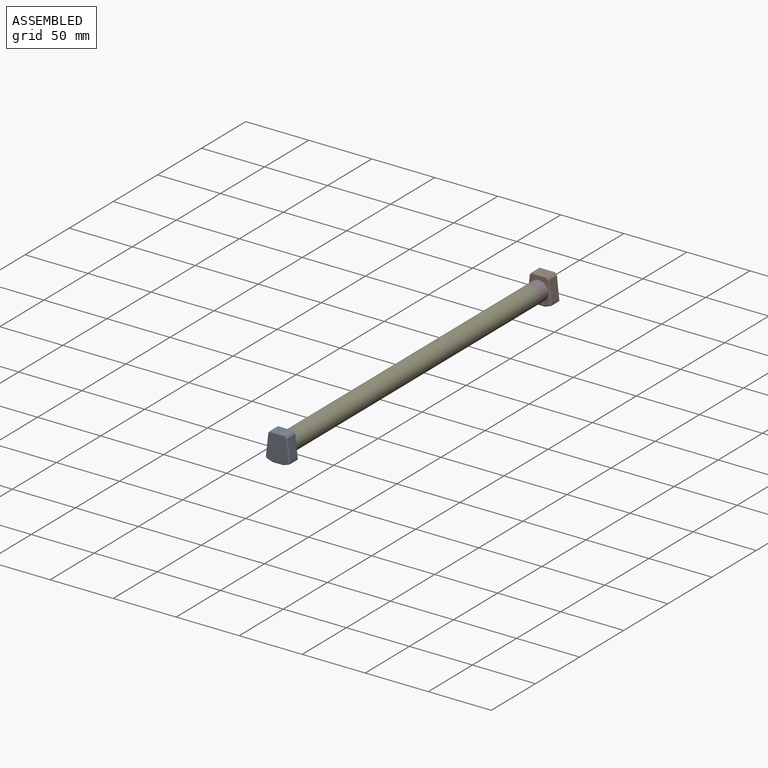
[diagram: assembled view]
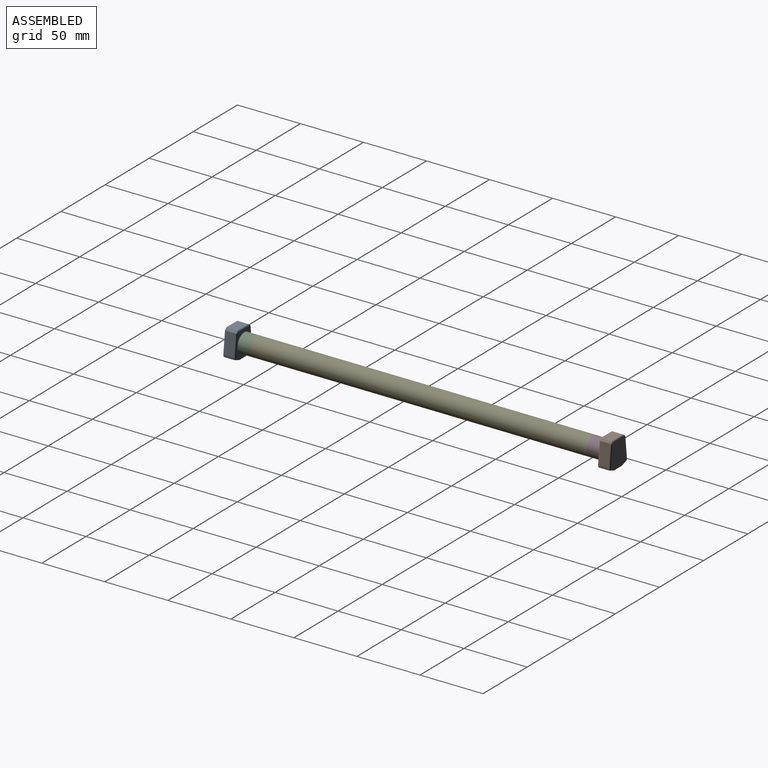
[diagram: assembled view, second angle]
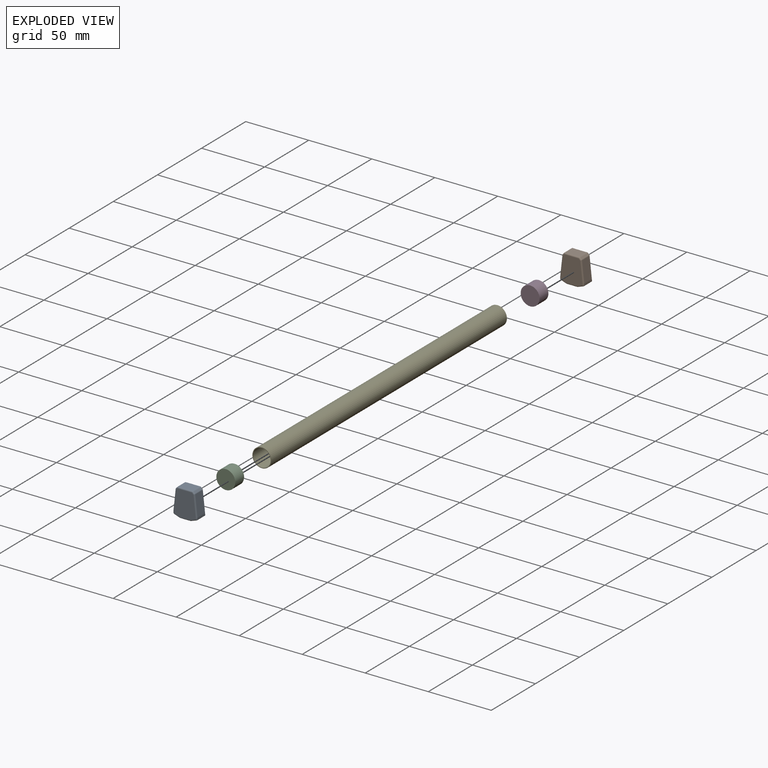
[diagram: exploded view]
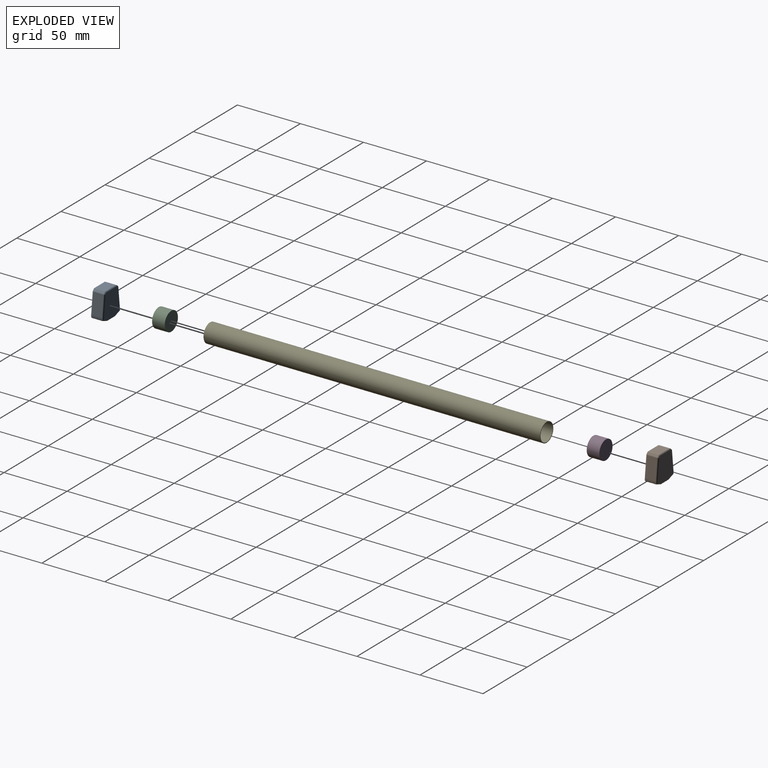
[diagram: exploded view, second angle]
ASSEMBLY  parts=5 mates=4
PART A: 48 faces, bbox 19.6x10x22 mm
  f0: plane 16.46x9mm, normal (-0.99,0,0.11), area 149mm2, adj f1,f9,f10,f40
  f1: plane 9x1.27mm, normal (-1,0,0), area 11.4mm2, adj f0,f10,f43,f45,f47
  f2: plane 8x4.47mm, normal (-0.33,0,-0.94), area 37.9mm2, adj f38,f44,f45,f47
  f3: plane 8.07x8mm, normal (0,0,-1), area 64.5mm2, adj f31,f37,f38,f39
  f4: plane 8x4.47mm, normal (0.33,0,-0.94), area 37.9mm2, adj f26,f30,f31,f32
  f5: plane 8.51x1.21mm, normal (1,0,0), area 10.2mm2, adj f20,f21,f26,f27
  f6: plane 16.08x8mm, normal (0.99,0,0.11), area 129.4mm2, adj f12,f15,f21,f27
  f7: plane 8x1.13mm, normal (0.74,0,0.68), area 12.3mm2, adj f15,f16,f18,f19
  f8: plane 11.34x8mm, normal (0,0,1), area 90.7mm2, adj f18,f23,f28,f29
  f9: plane 9.05x1.42mm, normal (-0.74,0,0.68), area 16.7mm2, adj f0,f10,f23,f28,f36
  f10: plane 20x18.13mm, normal (0,1,0), area 317.7mm2, adj f0,f1,f9,f16,f23,f27,f32,f39
  f11: plane 20x17mm, normal (0,-1,0), area 298.9mm2, adj f12,f19,f20,f29,f30,f36,f37,f40
  f12: cylinder r=1mm len=16.19mm, axis (-0.11,0,0.99), area 25.4mm2, adj f6,f11,f13,f14
  f13: sphere r=1mm, area 0.7mm2, adj f12,f15,f19
  f14: sphere r=1mm, area 0.1mm2, adj f12,f20,f21
  f15: cylinder r=1mm len=8mm, axis (0,-1,0), area 5mm2, adj f6,f7,f13,f22
  f16: cylinder r=1mm len=1.81mm, axis (0.68,0,-0.74), area 2.4mm2, adj f7,f10,f17,f22
  f17: sphere r=1mm, area 0.8mm2, adj f16,f18,f23
  f18: cylinder r=1mm len=8mm, axis (0,1,0), area 6.6mm2, adj f7,f8,f17,f24
  f19: cylinder r=1mm len=1.81mm, axis (-0.68,0,0.74), area 2.4mm2, adj f7,f11,f13,f24
  f20: cylinder r=1mm len=1.21mm, axis (0,0,1), area 1.9mm2, adj f5,f11,f14,f25
  f21: cylinder r=1mm len=8.11mm, axis (0,1,0), area 0.9mm2, adj f5,f6,f14,f27
  f22: sphere r=1mm, area 0.7mm2, adj f15,f16,f27
  f23: cylinder r=1mm len=12.7mm, axis (1,0,0), area 18.9mm2, adj f8,f9,f10,f17,f28
  f24: sphere r=1mm, area 0.8mm2, adj f18,f19,f29
  f25: sphere r=1mm, area 1.2mm2, adj f20,f26,f30
  f26: cylinder r=1mm len=8.7mm, axis (0,1,0), area 10.4mm2, adj f4,f5,f25,f27,f32
  f27: cylinder r=1mm len=17.92mm, axis (0.11,0,-0.99), area 27.2mm2, adj f5,f6,f10,f21,f22,f26,f32
  f28: cylinder r=1mm len=8.74mm, axis (0,-1,0), area 7mm2, adj f8,f9,f23,f33
  f29: cylinder r=1mm len=11.34mm, axis (-1,0,0), area 17.8mm2, adj f8,f11,f24,f33
  f30: cylinder r=1mm len=4.8mm, axis (0.94,0,0.33), area 7.4mm2, adj f4,f11,f25,f34
  f31: cylinder r=1mm len=8mm, axis (0,1,0), area 2.7mm2, adj f3,f4,f34,f35
  f32: cylinder r=1mm len=5.46mm, axis (-0.94,0,-0.33), area 8.1mm2, adj f4,f10,f26,f27,f35
  f33: sphere r=1mm, area 0.8mm2, adj f28,f29,f36
  f34: sphere r=1mm, area 0.3mm2, adj f30,f31,f37
  f35: sphere r=1mm, area 0.3mm2, adj f31,f32,f39
  f36: cylinder r=1mm len=2.05mm, axis (-0.68,0,-0.74), area 2.7mm2, adj f9,f11,f33,f40
  f37: cylinder r=1mm len=8.07mm, axis (1,0,0), area 12.7mm2, adj f3,f11,f34,f41
  f38: cylinder r=1mm len=8mm, axis (0,-1,0), area 2.7mm2, adj f2,f3,f41,f42
  f39: cylinder r=1mm len=8.07mm, axis (-1,0,0), area 12.7mm2, adj f3,f10,f35,f42
  f40: cylinder r=1mm len=16.57mm, axis (-0.11,0,-0.99), area 25.8mm2, adj f0,f11,f36,f43
  f41: sphere r=1mm, area 0.3mm2, adj f37,f38,f44
  f42: sphere r=1mm, area 0.3mm2, adj f38,f39,f45
  f43: cylinder r=1mm len=1.27mm, axis (0,0,-1), area 2mm2, adj f1,f11,f40,f46
  f44: cylinder r=1mm len=4.8mm, axis (0.94,0,-0.33), area 7.4mm2, adj f2,f11,f41,f46
  f45: cylinder r=1mm len=5.8mm, axis (-0.94,0,0.33), area 8.4mm2, adj f1,f2,f10,f42,f47
  f46: sphere r=1mm, area 1.2mm2, adj f43,f44,f47
  f47: cylinder r=1mm len=8.94mm, axis (0,-1,0), area 10.5mm2, adj f1,f2,f45,f46
PART B: same geometry as A
PART C: 3 faces, bbox 15x10x15 mm
  f0: cylinder r=7.5mm len=15mm, axis (0,-1,0), area 471.2mm2, adj f1,f2
  f1: plane 15x15mm, normal (0,1,0), area 176.7mm2, adj f0
  f2: plane 15x15mm, normal (0,-1,0), area 176.7mm2, adj f0
PART D: same geometry as C
PART E: 4 faces, bbox 15x267x15 mm
  f0: cylinder r=7mm len=267mm, axis (0,-1,0), area 11743.3mm2, adj f2,f3
  f1: cylinder r=7.5mm len=267mm, axis (0,-1,0), area 12582.1mm2, adj f2,f3
  f2: plane 15x15mm, normal (0,1,0), area 22.8mm2, adj f0,f1
  f3: plane 15x15mm, normal (0,-1,0), area 22.8mm2, adj f0,f1
PLACE A t=(-25.39,-77.62,-26.15)mm
PLACE B t=(-25.86,219.38,-26.08)mm
PLACE C rot(axis=(1,0,0),180deg) t=(-25.86,-57.62,-26.36)mm
PLACE D rot(axis=(1,0,0),180deg) t=(-25.86,219.38,-26.36)mm
PLACE E t=(-25.86,-57.62,-26.36)mm
MATE fastened C.f0 <-> E.f0  axis (0,1,0) through (-25.86,-57.62,-26.36)mm
MATE fastened A.f10 <-> C.f0  axis (0,1,0) through (-25.86,-67.62,-26.36)mm
MATE fastened B.f11 <-> D.f0  axis (0,-1,0) through (-25.86,219.38,-26.36)mm
MATE fastened D.f0 <-> E.f0  axis (0,-1,0) through (-25.86,209.38,-26.36)mm
